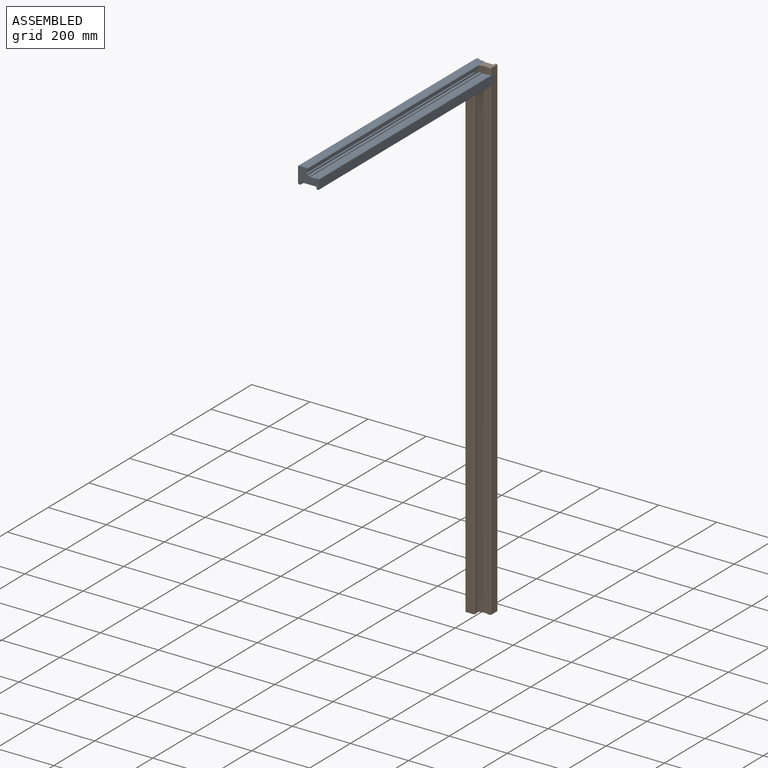
[diagram: assembled view]
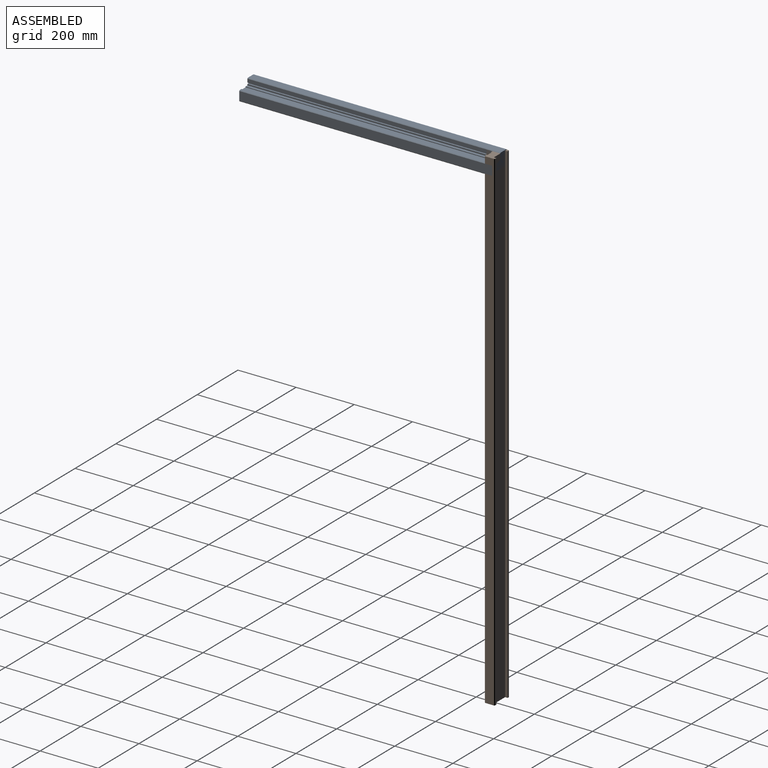
[diagram: assembled view, second angle]
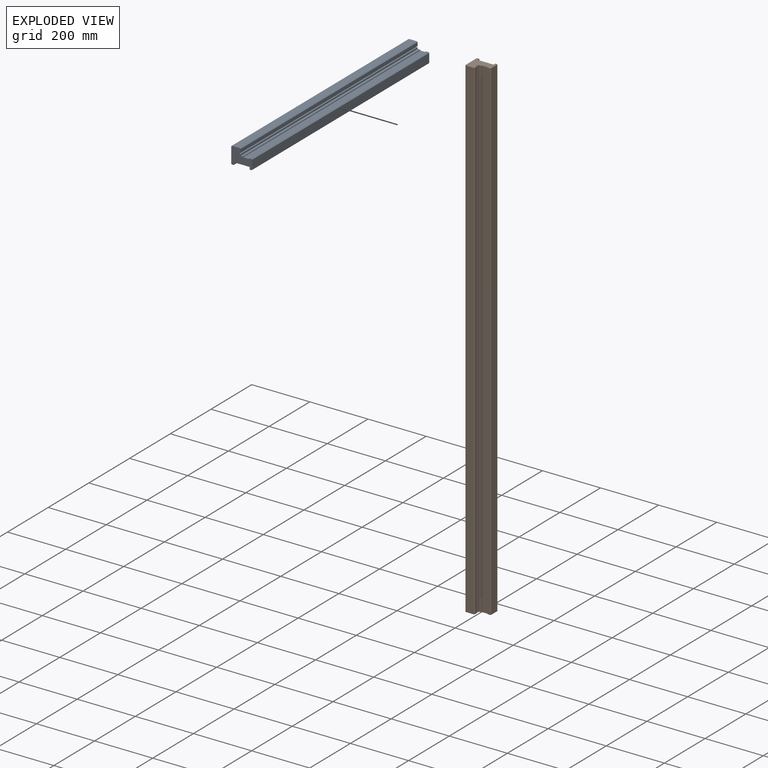
[diagram: exploded view]
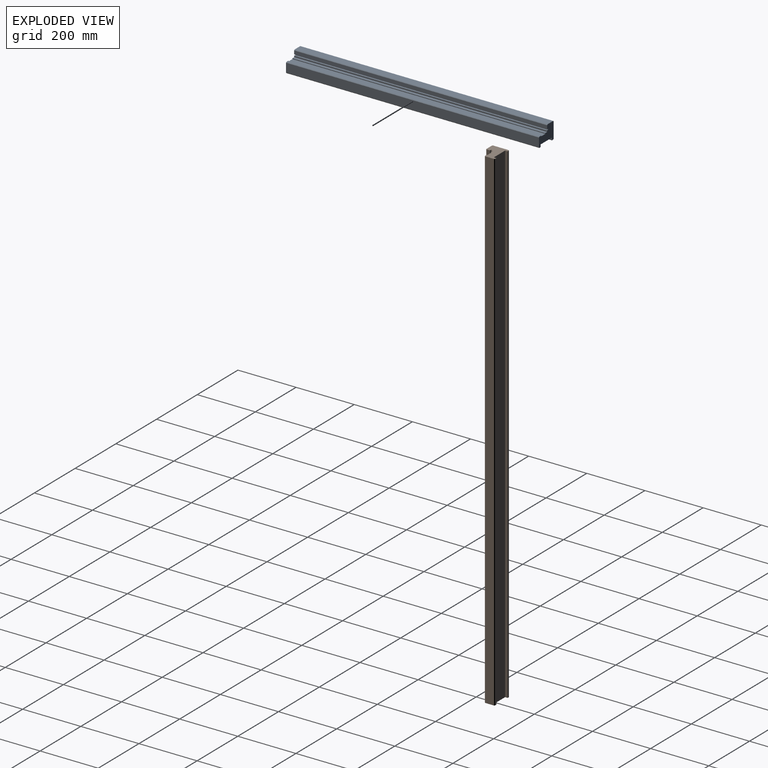
[diagram: exploded view, second angle]
ASSEMBLY  parts=2 mates=2
PART A: 25 faces, bbox 72x58x870 mm
  f0: plane 870x2.5mm, normal (1,0,0), area 2175mm2, adj f1,f17,f18,f19
  f1: plane 870x20mm, normal (0,-1,0), area 17400mm2, adj f0,f2,f18,f19
  f2: plane 870x2.5mm, normal (-1,0,0), area 2175mm2, adj f1,f3,f18,f19
  f3: plane 870x9mm, normal (0,-1,0), area 7830mm2, adj f2,f18,f19,f24
  f4: plane 870x31mm, normal (1,0,0), area 26970mm2, adj f18,f19,f22,f24
  f5: plane 870x6.5mm, normal (0,1,0), area 5655mm2, adj f6,f18,f19,f22
  f6: plane 870x8.5mm, normal (-1,0,0), area 7395mm2, adj f5,f7,f18,f19
  f7: plane 870x55mm, normal (0,1,0), area 47850mm2, adj f6,f8,f18,f19
  f8: plane 870x8.5mm, normal (1,0,0), area 7395mm2, adj f7,f9,f18,f19
  f9: plane 870x6.5mm, normal (0,1,0), area 5655mm2, adj f8,f18,f19,f21
  f10: plane 870x54mm, normal (-1,0,0), area 46980mm2, adj f18,f19,f20,f21
  f11: plane 870x28mm, normal (0,-1,0), area 24360mm2, adj f18,f19,f20,f23
  f12: plane 870x12.22mm, normal (1,0,0), area 10631.4mm2, adj f13,f18,f19,f23
  f13: plane 870x5mm, normal (0,1,0), area 4350mm2, adj f12,f14,f18,f19
  f14: plane 870x4mm, normal (1,0,0), area 3480mm2, adj f13,f15,f18,f19
  f15: plane 870x5mm, normal (0,-1,0), area 4350mm2, adj f14,f16,f18,f19
  f16: plane 870x4.78mm, normal (1,0,0), area 4158.6mm2, adj f15,f17,f18,f19
  f17: plane 870x9mm, normal (0,-1,0), area 7830mm2, adj f0,f16,f18,f19
  f18: plane 72x58mm, normal (0,0,1), area 2708.5mm2, adj f0,f1,f2,f3,f4,f5,f6,f7
  f19: plane 72x58mm, normal (0,0,-1), area 2708.5mm2, adj f0,f1,f2,f3,f4,f5,f6,f7
  f20: plane 870x2mm, normal (-0.71,-0.71,0), area 2460.7mm2, adj f10,f11,f18,f19
  f21: plane 870x2mm, normal (-0.71,0.71,0), area 2460.7mm2, adj f9,f10,f18,f19
  f22: plane 870x2mm, normal (0.71,0.71,0), area 2460.7mm2, adj f4,f5,f18,f19
  f23: plane 870x2mm, normal (0.71,-0.71,0), area 2460.7mm2, adj f11,f12,f18,f19
  f24: plane 870x2mm, normal (0.71,-0.71,0), area 2460.7mm2, adj f3,f4,f18,f19
PART B: 25 faces, bbox 72x58x1699.4 mm
  f0: plane 1699.38x2.5mm, normal (1,0,0), area 4248.4mm2, adj f1,f17,f18,f19
  f1: plane 1699.38x20mm, normal (0,-1,0), area 33987.6mm2, adj f0,f2,f18,f19
  f2: plane 1699.38x2.5mm, normal (-1,0,0), area 4248.4mm2, adj f1,f3,f18,f19
  f3: plane 1699.38x9mm, normal (0,-1,0), area 15294.4mm2, adj f2,f18,f19,f21
  f4: plane 1699.38x31mm, normal (1,0,0), area 52680.8mm2, adj f18,f19,f20,f21
  f5: plane 1699.38x6.5mm, normal (0,1,0), area 11046mm2, adj f6,f18,f19,f20
  f6: plane 1699.38x8.5mm, normal (-1,0,0), area 14444.7mm2, adj f5,f7,f18,f19
  f7: plane 1699.38x55mm, normal (0,1,0), area 93465.9mm2, adj f6,f8,f18,f19
  f8: plane 1699.38x8.5mm, normal (1,0,0), area 14444.7mm2, adj f7,f9,f18,f19
  f9: plane 1699.38x6.5mm, normal (0,1,0), area 11046mm2, adj f8,f18,f19,f23
  f10: plane 1699.38x54mm, normal (-1,0,0), area 91766.5mm2, adj f18,f19,f23,f24
  f11: plane 1699.38x28mm, normal (0,-1,0), area 47582.6mm2, adj f18,f19,f22,f24
  f12: plane 1699.38x12.22mm, normal (1,0,0), area 20766.4mm2, adj f13,f18,f19,f22
  f13: plane 1699.38x5mm, normal (0,1,0), area 8496.9mm2, adj f12,f14,f18,f19
  f14: plane 1699.38x4mm, normal (1,0,0), area 6797.5mm2, adj f13,f15,f18,f19
  f15: plane 1699.38x5mm, normal (0,-1,0), area 8496.9mm2, adj f14,f16,f18,f19
  f16: plane 1699.38x4.78mm, normal (1,0,0), area 8123mm2, adj f15,f17,f18,f19
  f17: plane 1699.38x9mm, normal (0,-1,0), area 15294.4mm2, adj f0,f16,f18,f19
  f18: plane 72x58mm, normal (0,0,1), area 2708.5mm2, adj f0,f1,f2,f3,f4,f5,f6,f7
  f19: plane 72x58mm, normal (0,0,-1), area 2708.5mm2, adj f0,f1,f2,f3,f4,f5,f6,f7
  f20: plane 1699.38x2mm, normal (0.71,0.71,0), area 4806.6mm2, adj f4,f5,f18,f19
  f21: plane 1699.38x2mm, normal (0.71,-0.71,0), area 4806.6mm2, adj f3,f4,f18,f19
  f22: plane 1699.38x2mm, normal (0.71,-0.71,0), area 4806.6mm2, adj f11,f12,f18,f19
  f23: plane 1699.38x2mm, normal (-0.71,0.71,0), area 4806.6mm2, adj f9,f10,f18,f19
  f24: plane 1699.38x2mm, normal (-0.71,-0.71,0), area 4806.6mm2, adj f10,f11,f18,f19
PLACE A rot(axis=(-1,0,0),90deg) t=(-567.25,-766.92,1471.58)mm
PLACE B t=(-566.97,82.44,-200.8)mm
MATE planar B.f10 <-> A.f10  axis (-1,0,0) through (-603.25,82.58,1498.58)mm
MATE planar B.f7 <-> B.f9  axis (0,1,0) through (-567.25,103.08,1498.58)mm
